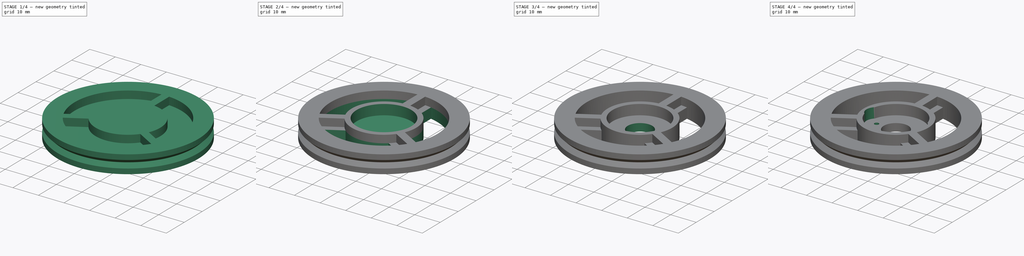
[diagram: build sequence overview — one tinted view per stage of 4, left to right]
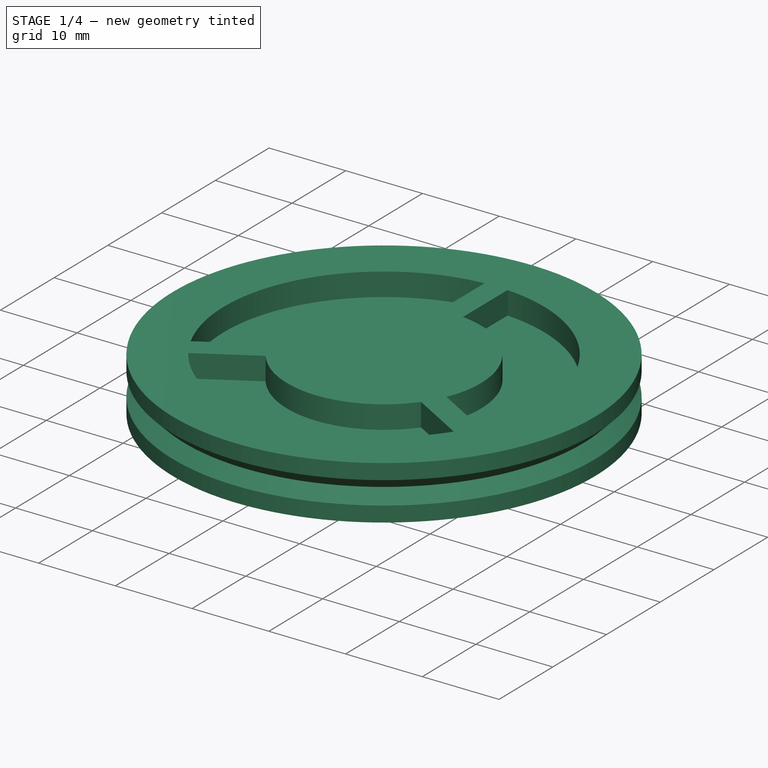
[diagram: stage 1 of 4 — iso view after this stage's code; geometry added in this stage tinted green]
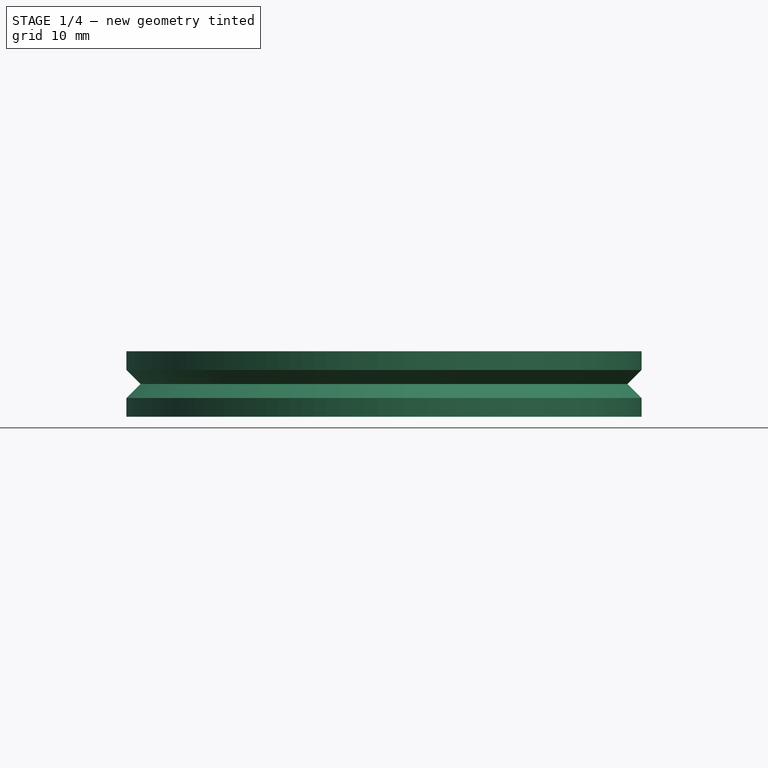
[diagram: stage 1 of 4 — front view after this stage's code; geometry added in this stage tinted green]
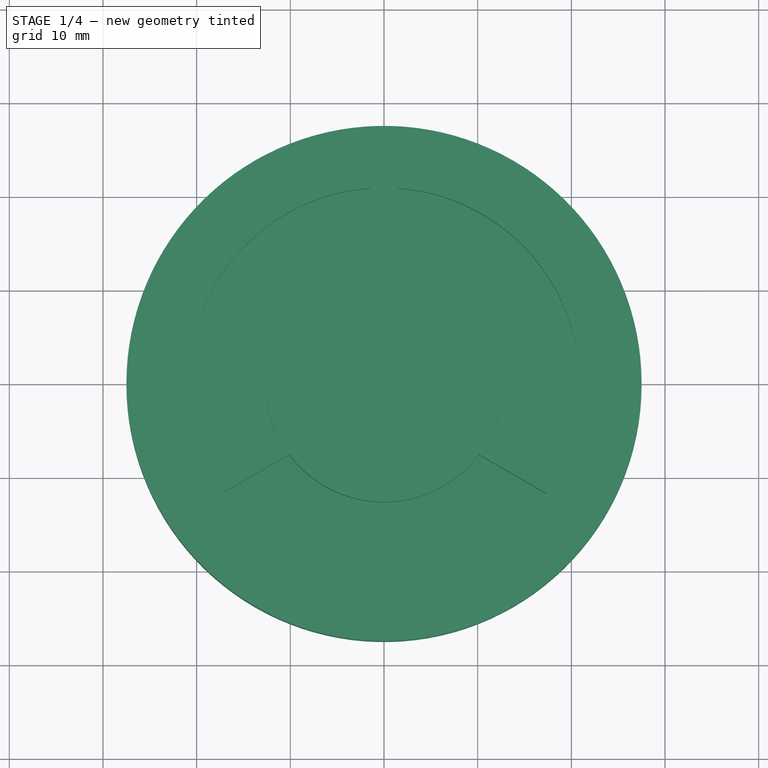
[diagram: stage 1 of 4 — top view after this stage's code; geometry added in this stage tinted green]
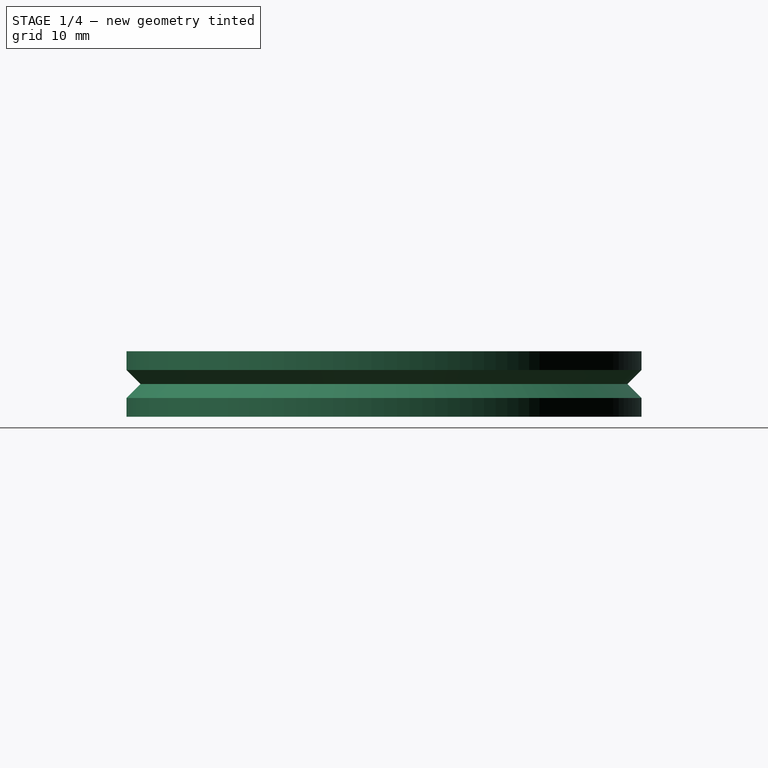
[diagram: stage 1 of 4 — right view after this stage's code; geometry added in this stage tinted green]
FCSTD DOCUMENT  (FreeCAD 0.14R3702 (Git))
Label: Renacuajo-original-wheel-screws
License: CC-BY 3.0
LicenseURL: http://creativecommons.org/licenses/by/3.0/
objects: Sketcher::SketchObject×7, PartDesign::Pocket×6, PartDesign::PolarPattern×2, PartDesign::Mirrored×2, PartDesign::Revolution×1, Part::Feature×1
note: 26 computed .brp shape members not serialized (recipe doc carries the construction recipe); baked Part::Feature solids carry a one-line shape summary decoded from their .brp

FEATURE [Sketcher::SketchObject] Sketch  label="wheel-generic-sketch"
  Placement = pos=(0,0,0) rot=(1,0,0;1.5708rad)
  sketch-geometry (7):
    g0: LineSegment StartX=0 StartY=-3.5 StartZ=0 EndX=0 EndY=3.5 EndZ=0
    g1: LineSegment StartX=0 StartY=3.5 StartZ=0 EndX=27.5 EndY=3.5 EndZ=0
    g2: LineSegment StartX=27.5 StartY=3.5 StartZ=0 EndX=27.5 EndY=1.5 EndZ=0
    g3: LineSegment StartX=27.5 StartY=1.5 StartZ=0 EndX=26 EndY=0 EndZ=0
    g4: LineSegment StartX=26 StartY=0 StartZ=0 EndX=27.5 EndY=-1.5 EndZ=0
    g5: LineSegment StartX=27.5 StartY=-1.5 StartZ=0 EndX=27.5 EndY=-3.5 EndZ=0
    g6: LineSegment StartX=27.5 StartY=-3.5 StartZ=0 EndX=0 EndY=-3.5 EndZ=0
  constraints (20):
    c: Vertical(g0)
    c: Coincident(g0,g1)
    c: Horizontal(g1)
    c: Coincident(g1,g2)
    c: Vertical(g2)
    c: Coincident(g2,g3)
    c: Coincident(g3,g4)
    c: Coincident(g4,g5)
    c: Coincident(g5,g6)
    c: Coincident(g6,g0)
    c: Horizontal(g6)
    c: Vertical(g5)
    c: PointOnObject(g0,g-2)
    c: Symmetric(g0,g0,g-1)
    c: PointOnObject(g3,g-1)
    c: Symmetric(g4,g2,g-1)
    c: Angle(g3,g-1) = 2.35619
    c: DistanceY(g4,g2) = 3
    c: DistanceX(g1) = 27.5
    c: DistanceY(g0) = 7
FEATURE [PartDesign::Revolution] Revolution  label="wheel-generic"
  Angle = 360
  Axis = (0,0,1)
  Base = (0,0,0)
  Placement = pos=(0,0,0) rot=(1,0,0;1.5708rad)
  ReferenceAxis = -> Sketch [V_Axis]
  Reversed = true
  Sketch = -> Sketch
FEATURE [Sketcher::SketchObject] Sketch001  label="sector1-master-sketch"
  Placement = pos=(0,0,3.5) rot=(0,0,1;3.14159rad)
  Support = -> Revolution [Face1]
  sketch-geometry (8):
    g0: Circle [constr] CenterX=0 CenterY=0 CenterZ=0 NormalX=0 NormalY=0 NormalZ=1 Radius=12.65
    g1: Circle [constr] CenterX=0 CenterY=0 CenterZ=0 NormalX=0 NormalY=0 NormalZ=1 Radius=20.9
    g2: LineSegment [constr] StartX=0 StartY=0 StartZ=0 EndX=-18.0999 EndY=10.45 EndZ=0
    g3: LineSegment StartX=-17.3033 StartY=11.7221 StartZ=0 EndX=-10.1279 EndY=7.57941 EndZ=0
    g4: LineSegment [constr] StartX=-10.8779 StartY=6.28038 StartZ=0 EndX=-10.1279 EndY=7.57941 EndZ=0
    g5: LineSegment StartX=10.1279 StartY=7.57941 StartZ=0 EndX=17.3033 EndY=11.7221 EndZ=0
    g6: ArcOfCircle CenterX=0 CenterY=0 CenterZ=0 NormalX=0 NormalY=0 NormalZ=1 Radius=12.65 StartAngle=0.642455 EndAngle=2.49914
    g7: ArcOfCircle CenterX=0 CenterY=0 CenterZ=0 NormalX=0 NormalY=0 NormalZ=1 Radius=20.9 StartAngle=0.595431 EndAngle=2.54616
  constraints (23):
    c: Radius(g0) = 12.65
    c: Radius(g1) = 20.9
    c: PointOnObject(g2,g1)
    c: Angle(g-2,g2) = 1.0472
    c: Parallel(g3,g2)
    c: PointOnObject(g3,g1)
    c: PointOnObject(g3,g0)
    c: Coincident(g1,g-1)
    c: Coincident(g0,g-1)
    c: Coincident(g2,g-1)
    c: Perpendicular(g2,g4)
    c: PointOnObject(g4,g3)
    c: PointOnObject(g4,g2)
    c: Coincident(g4,g3)
    c: Distance(g4) = 1.5
    c: Symmetric(g3,g5,g-2)
    c: Symmetric(g5,g3,g-2)
    c: Coincident(g7,g3)
    c: Coincident(g7,g5)
    c: Coincident(g6,g3)
    c: Coincident(g6,g5)
    c: Coincident(g7,g-1)
    c: Coincident(g6,g-1)
FEATURE [PartDesign::Pocket] Pocket  label="sector1-master"
  Length = 3
  Placement = pos=(0,0,0) rot=(1,0,0;1.5708rad)
  Sketch = -> Sketch001
  Type = 0
FEATURE [PartDesign::PolarPattern] PolarPattern  label="sector1"
  Angle = 360
  Axis = -> Sketch001 [N_Axis]
  Occurrences = 3
  Originals = -> [Pocket]
  Placement = pos=(0,0,0) rot=(1,0,0;1.5708rad)
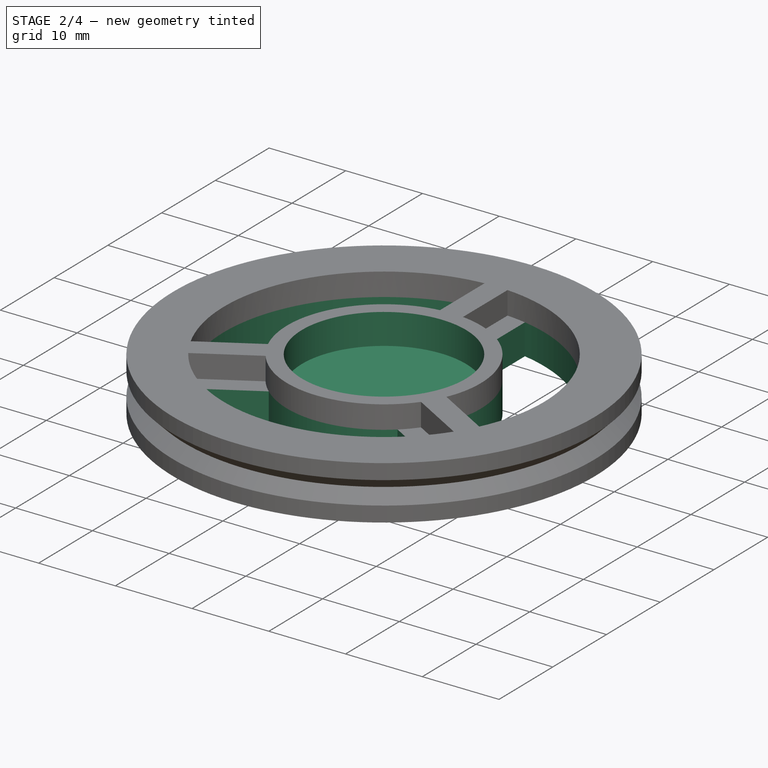
[diagram: stage 2 of 4 — iso view after this stage's code; geometry added in this stage tinted green]
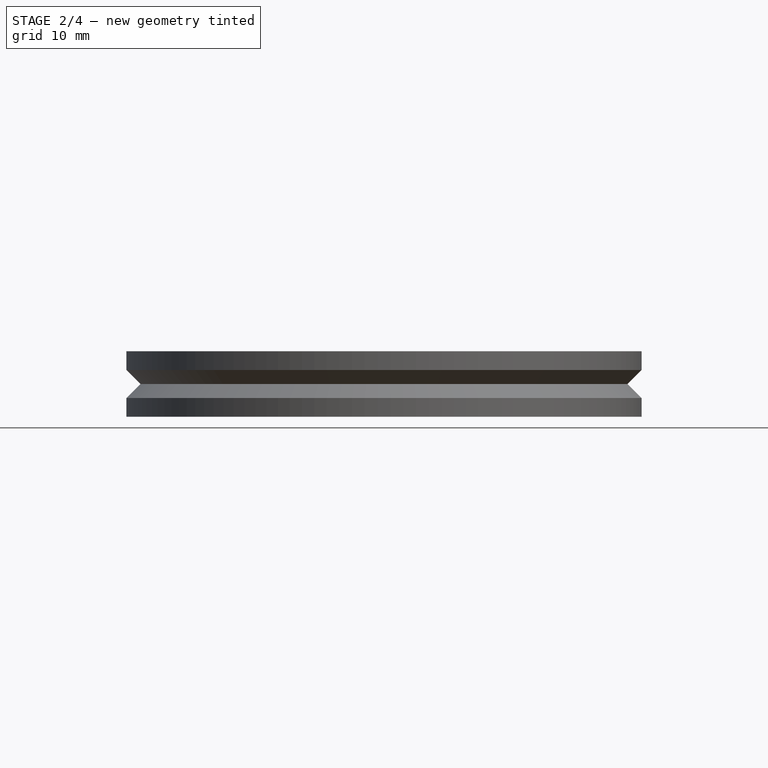
[diagram: stage 2 of 4 — front view after this stage's code; geometry added in this stage tinted green]
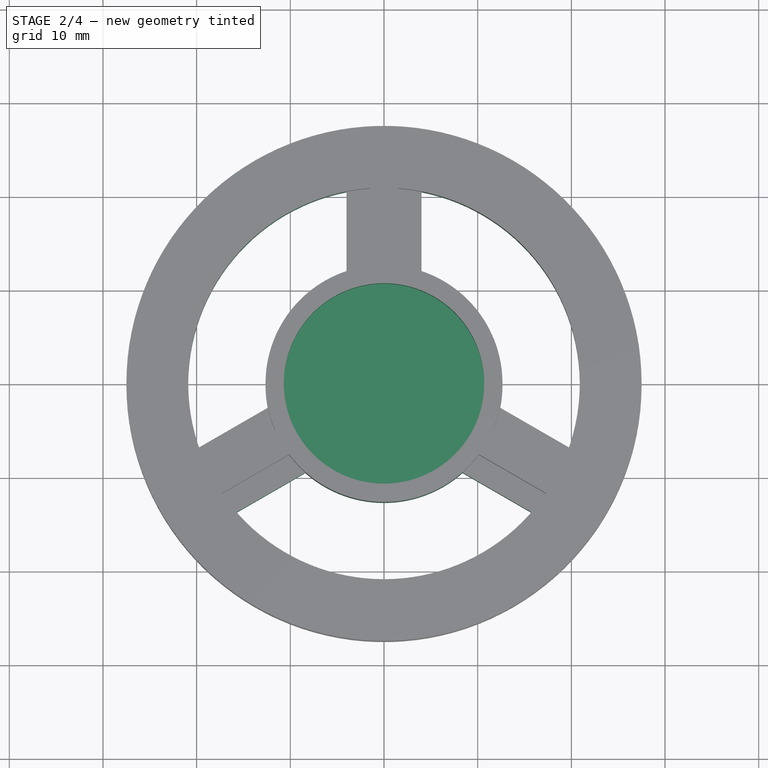
[diagram: stage 2 of 4 — top view after this stage's code; geometry added in this stage tinted green]
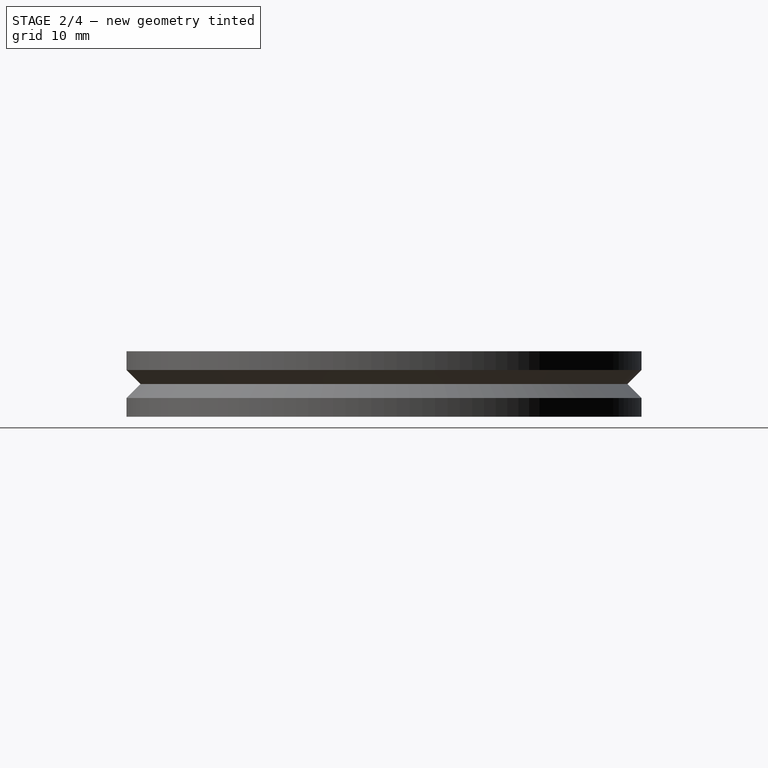
[diagram: stage 2 of 4 — right view after this stage's code; geometry added in this stage tinted green]
FEATURE [Sketcher::SketchObject] Sketch006  label="sector2-master-sketch"
  ExternalGeometry = -> [PolarPattern]
  Placement = pos=(0,0,0.5) rot=(0,0,1;3.14159rad)
  Support = -> PolarPattern [Face16]
  sketch-geometry (6):
    g0: LineSegment [constr] StartX=-18.0999 StartY=10.45 StartZ=0 EndX=0 EndY=0 EndZ=0
    g1: LineSegment StartX=-15.7653 StartY=13.7209 StartZ=0 EndX=-8.39312 EndY=9.46457 EndZ=0
    g2: LineSegment [constr] StartX=-8.39312 StartY=9.46457 StartZ=0 EndX=-10.3931 EndY=6.00047 EndZ=0
    g3: LineSegment StartX=8.39312 StartY=9.46457 StartZ=0 EndX=15.7653 EndY=13.7209 EndZ=0
    g4: ArcOfCircle CenterX=0 CenterY=0 CenterZ=0 NormalX=0 NormalY=0 NormalZ=1 Radius=12.65 StartAngle=0.845326 EndAngle=2.29627
    g5: ArcOfCircle CenterX=0 CenterY=0 CenterZ=0 NormalX=0 NormalY=0 NormalZ=1 Radius=20.9 StartAngle=0.716174 EndAngle=2.42542
  constraints (18):
    c: PointOnObject(g0,g-4)
    c: Angle(g-2,g0) = 1.0472
    c: Parallel(g1,g0)
    c: PointOnObject(g1,g-4)
    c: PointOnObject(g1,g-3)
    c: Coincident(g2,g1)
    c: PointOnObject(g2,g0)
    c: Perpendicular(g2,g0)
    c: Distance(g2) = 4
    c: Symmetric(g3,g1,g-2)
    c: Symmetric(g3,g1,g-2)
    c: Coincident(g4,g1)
    c: Coincident(g4,g3)
    c: Coincident(g4,g-1)
    c: Coincident(g0,g-1)
    c: Coincident(g5,g1)
    c: Coincident(g5,g3)
    c: Coincident(g5,g-1)
FEATURE [PartDesign::Pocket] Pocket005  label="sector2-master"
  Length = 5
  Placement = pos=(0,0,0) rot=(1,0,0;1.5708rad)
  Sketch = -> Sketch006
  Type = 1
FEATURE [PartDesign::PolarPattern] PolarPattern003  label="sector2"
  Angle = 360
  Axis = -> Sketch006 [N_Axis]
  Occurrences = 3
  Originals = -> [Pocket005]
  Placement = pos=(0,0,0) rot=(1,0,0;1.5708rad)
FEATURE [Sketcher::SketchObject] Sketch003  label="rounded-horn-sketch"
  Placement = pos=(0,0,3.5) rot=(0,0,1;3.14159rad)
  Support = -> PolarPattern003 [Face1]
  sketch-geometry (1):
    g0: Circle CenterX=0 CenterY=0 CenterZ=0 NormalX=0 NormalY=0 NormalZ=1 Radius=10.7
  constraints (2):
    c: Coincident(g0,g-1)
    c: Radius(g0) = 10.7
FEATURE [PartDesign::Pocket] Pocket006  label="rounded-horn"
  Length = 4
  Placement = pos=(0,0,0) rot=(1,0,0;1.5708rad)
  Sketch = -> Sketch003
  Type = 0
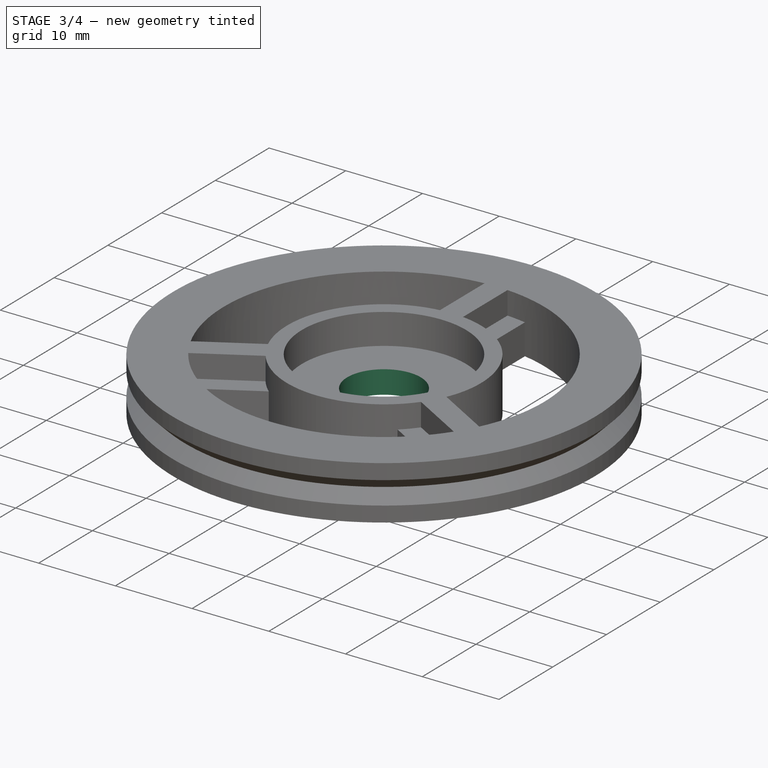
[diagram: stage 3 of 4 — iso view after this stage's code; geometry added in this stage tinted green]
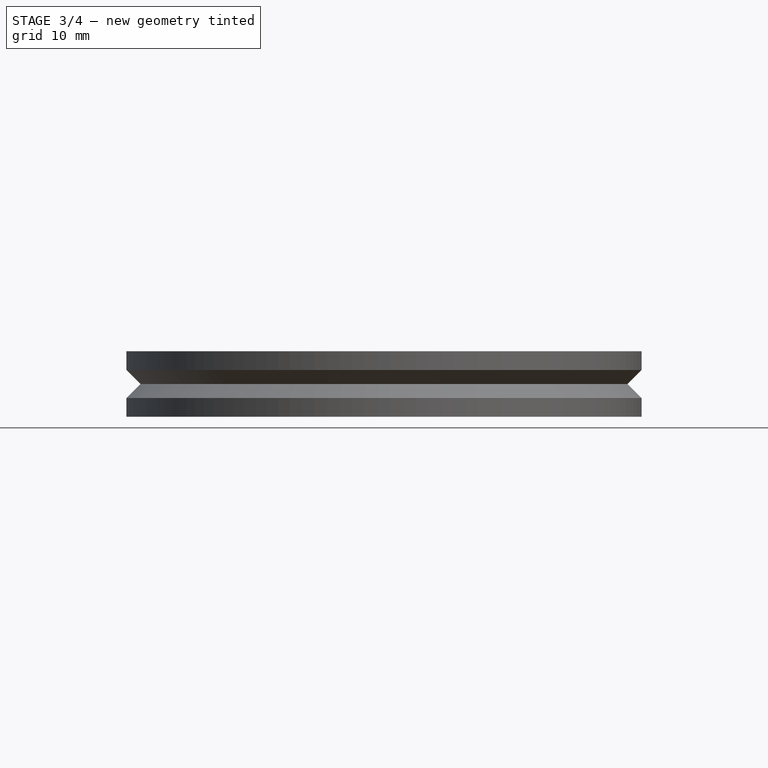
[diagram: stage 3 of 4 — front view after this stage's code; geometry added in this stage tinted green]
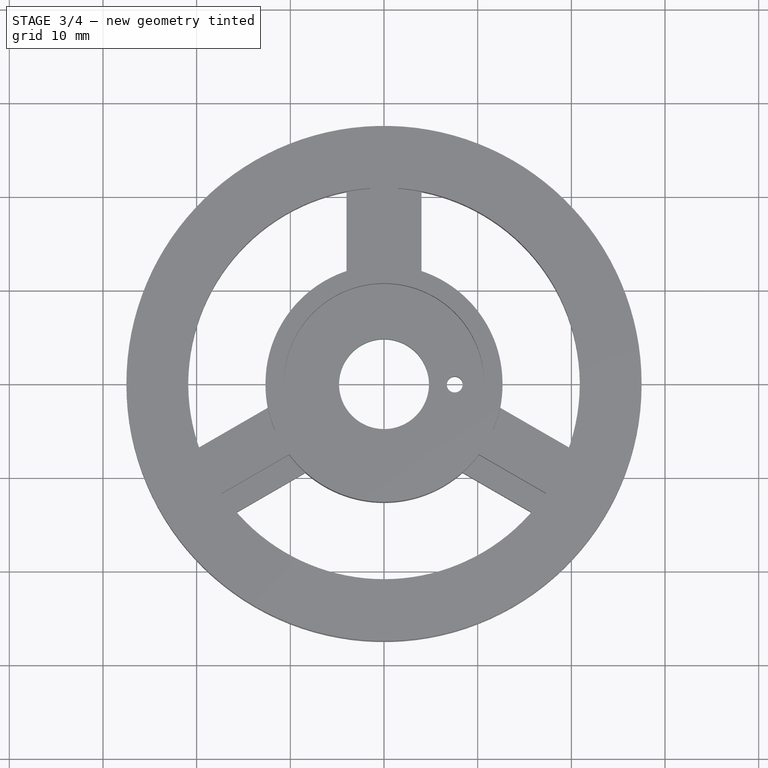
[diagram: stage 3 of 4 — top view after this stage's code; geometry added in this stage tinted green]
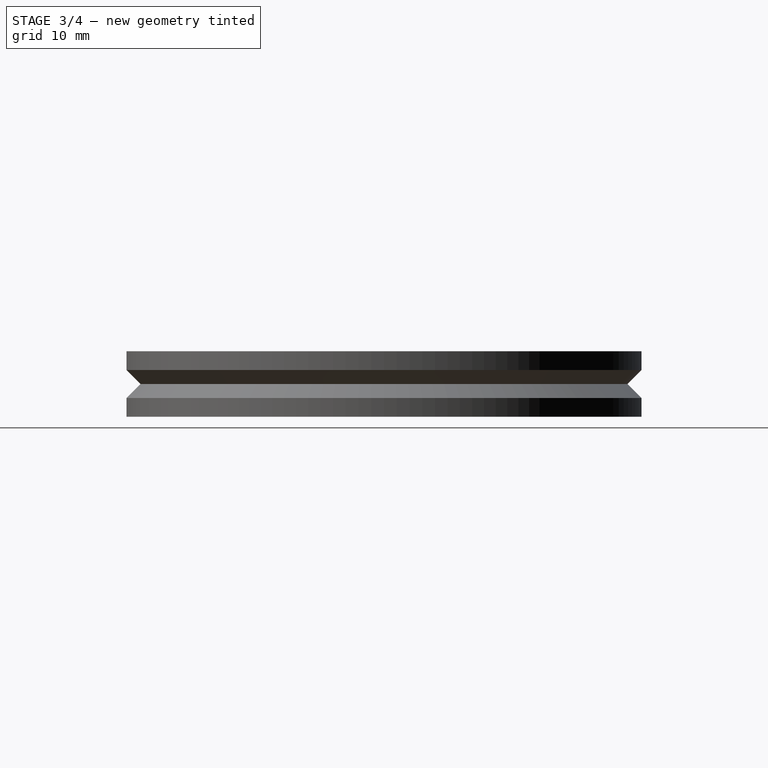
[diagram: stage 3 of 4 — right view after this stage's code; geometry added in this stage tinted green]
FEATURE [Sketcher::SketchObject] Sketch004  label="shaft-drill-sketch"
  Placement = pos=(0,0,-0.5) rot=(0,0,1;3.14159rad)
  Support = -> Pocket006 [Face29]
  sketch-geometry (1):
    g0: Circle CenterX=0 CenterY=0 CenterZ=0 NormalX=0 NormalY=0 NormalZ=1 Radius=4.8
  constraints (2):
    c: Coincident(g0,g-1)
    c: Radius(g0) = 4.8
FEATURE [PartDesign::Pocket] Pocket007  label="shaft-drill"
  Length = 5
  Placement = pos=(0,0,0) rot=(1,0,0;1.5708rad)
  Sketch = -> Sketch004
  Type = 1
FEATURE [Sketcher::SketchObject] Sketch007  label="horn-drill-master-sketch"
  Placement = pos=(0,0,-0.5) rot=(0,0,1;3.14159rad)
  Support = -> Pocket007 [Face29]
  sketch-geometry (1):
    g0: Circle CenterX=-7.55 CenterY=0.043546 CenterZ=0 NormalX=0 NormalY=0 NormalZ=1 Radius=0.85
  constraints (2):
    c: Radius(g0) = 0.85
    c: DistanceX(g-1,g0) = -7.55
FEATURE [PartDesign::Pocket] Pocket008  label="horn-drill-master"
  Length = 5
  Placement = pos=(0,0,0) rot=(1,0,0;1.5708rad)
  Sketch = -> Sketch007
  Type = 1
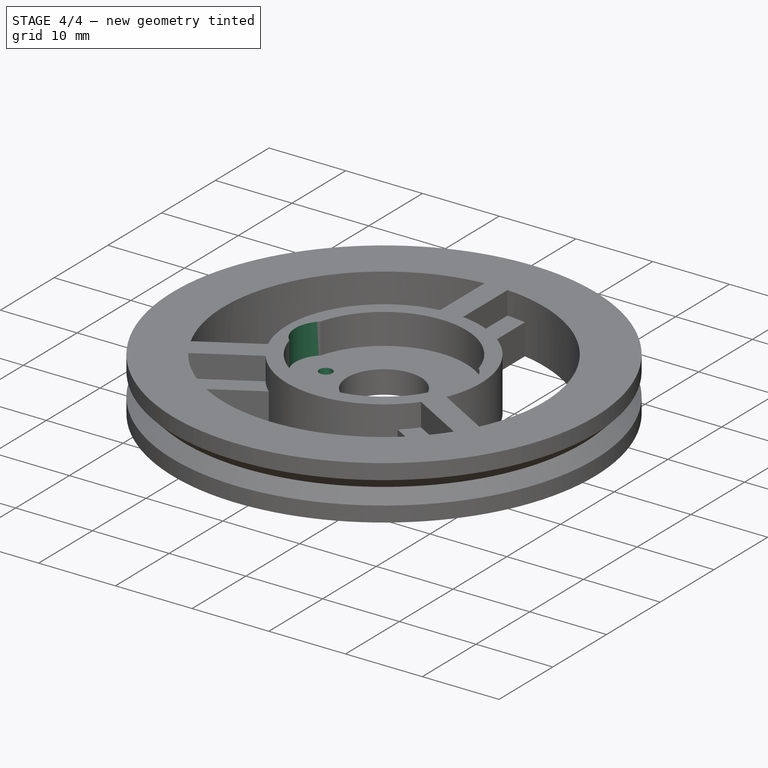
[diagram: stage 4 of 4 — iso view after this stage's code; geometry added in this stage tinted green]
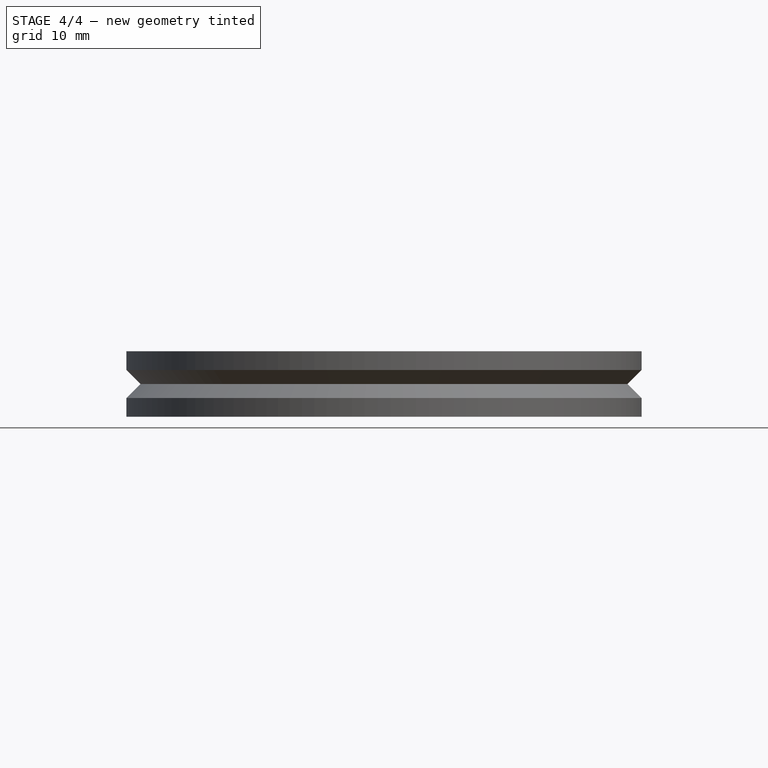
[diagram: stage 4 of 4 — front view after this stage's code; geometry added in this stage tinted green]
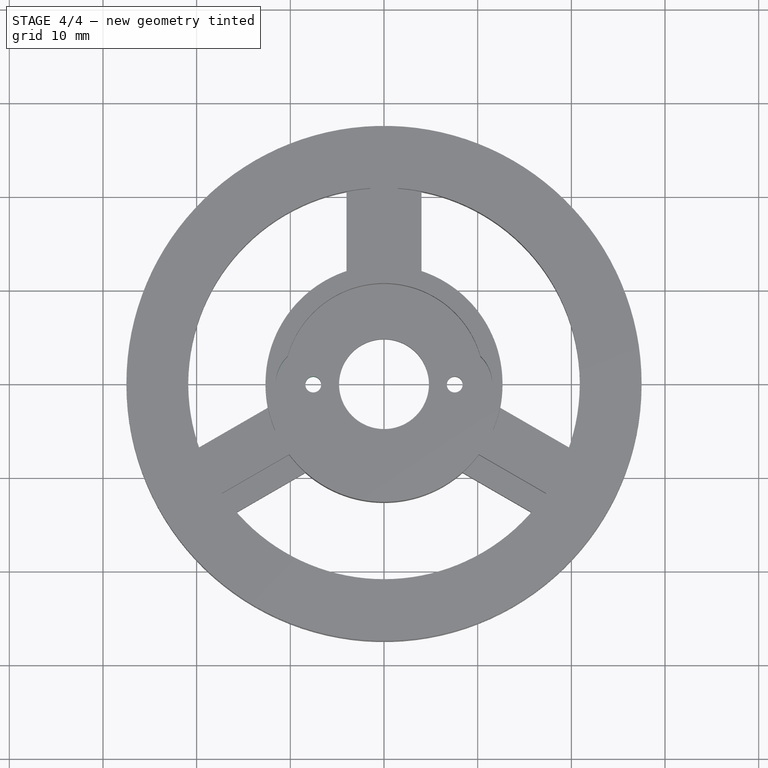
[diagram: stage 4 of 4 — top view after this stage's code; geometry added in this stage tinted green]
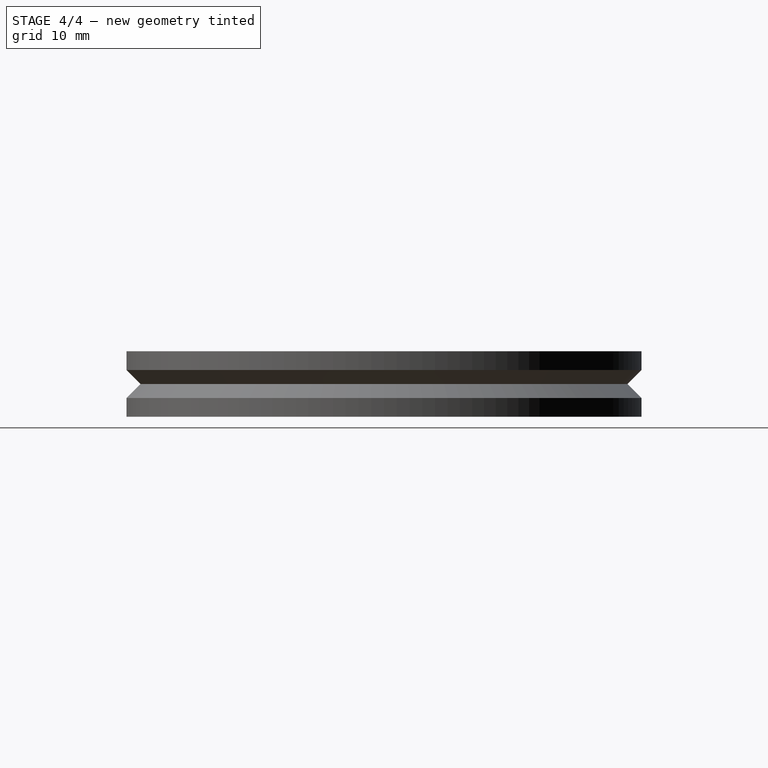
[diagram: stage 4 of 4 — right view after this stage's code; geometry added in this stage tinted green]
FEATURE [PartDesign::Mirrored] Mirrored  label="horn-drills"
  MirrorPlane = -> Sketch007 [V_Axis]
  Originals = -> [Pocket008]
  Placement = pos=(0,0,0) rot=(1,0,0;1.5708rad)
FEATURE [Sketcher::SketchObject] Sketch008  label="horn-screw-room-master-sketch"
  Placement = pos=(0,0,3.5) rot=(0,0,1;3.14159rad)
  Support = -> Mirrored [Face1]
  sketch-geometry (1):
    g0: Circle CenterX=-7.55 CenterY=0 CenterZ=0 NormalX=0 NormalY=0 NormalZ=1 Radius=4
  constraints (3):
    c: PointOnObject(g0,g-1)
    c: Radius(g0) = 4
    c: DistanceX(g-1,g0) = -7.55
FEATURE [PartDesign::Pocket] Pocket009  label="horn-screw-room-master"
  Length = 4
  Placement = pos=(0,0,0) rot=(1,0,0;1.5708rad)
  Sketch = -> Sketch008
  Type = 0
FEATURE [PartDesign::Mirrored] Mirrored001  label="horn-screw-room"
  MirrorPlane = -> Sketch008 [V_Axis]
  Originals = -> [Pocket009]
  Placement = pos=(0,0,0) rot=(1,0,0;1.5708rad)
FEATURE [Part::Feature] Mirrored001001  label="Renacuajo-original-wheel-screws-final"
  Placement = pos=(0,0,0) rot=(1,0,0;1.5708rad)
  shape: bbox 55 x 55 x 7 mm, 44 faces (baked)
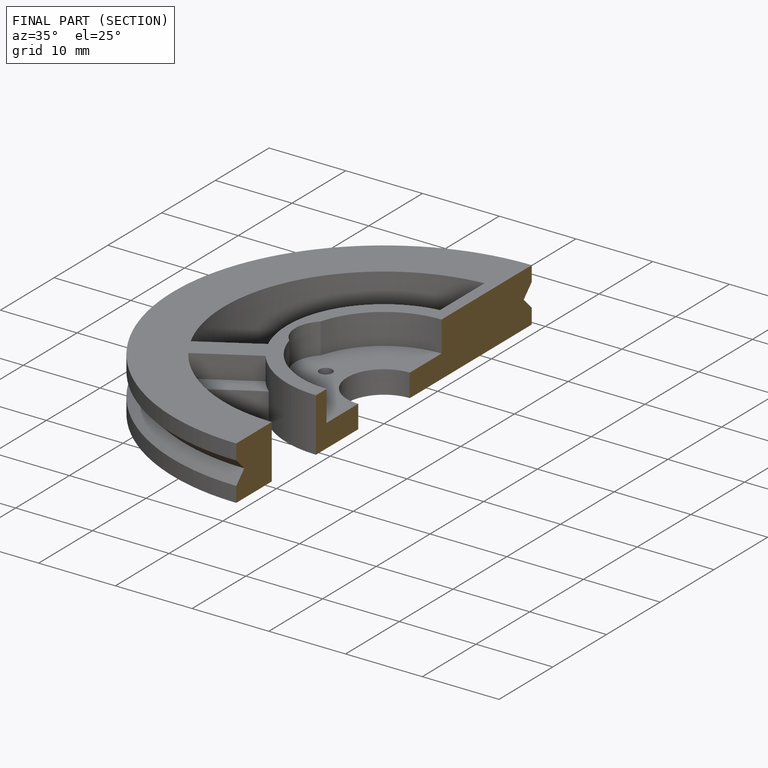
[diagram: finished part — half-section view (interior)]
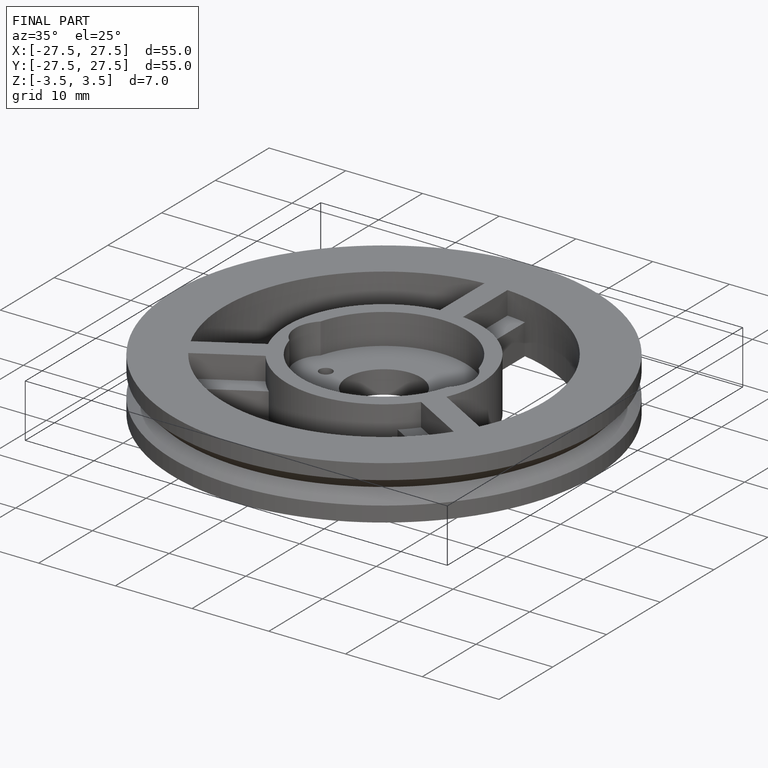
[diagram: finished part — iso view with bounding-box wireframe]
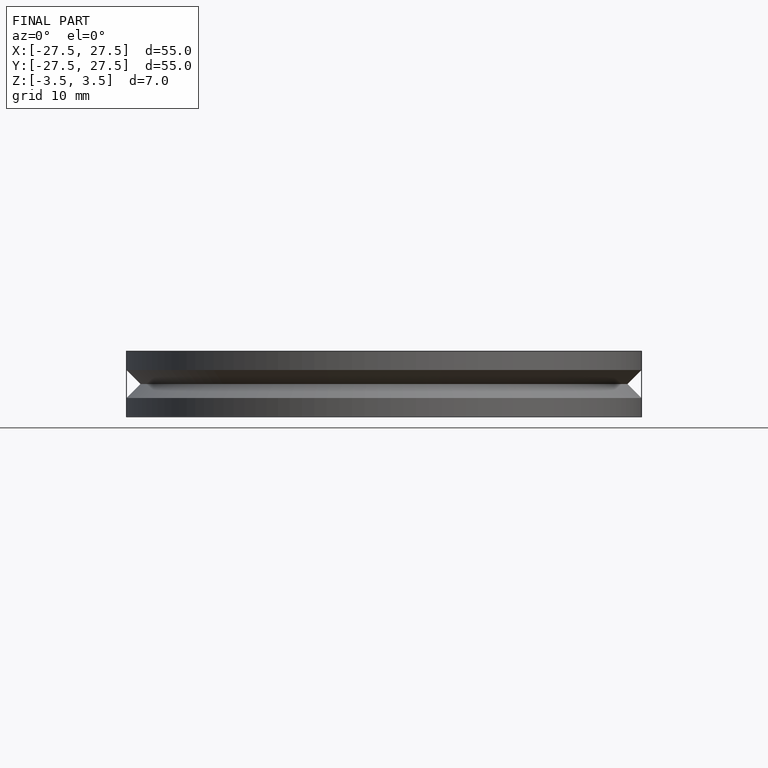
[diagram: finished part — front view with bounding-box wireframe]
